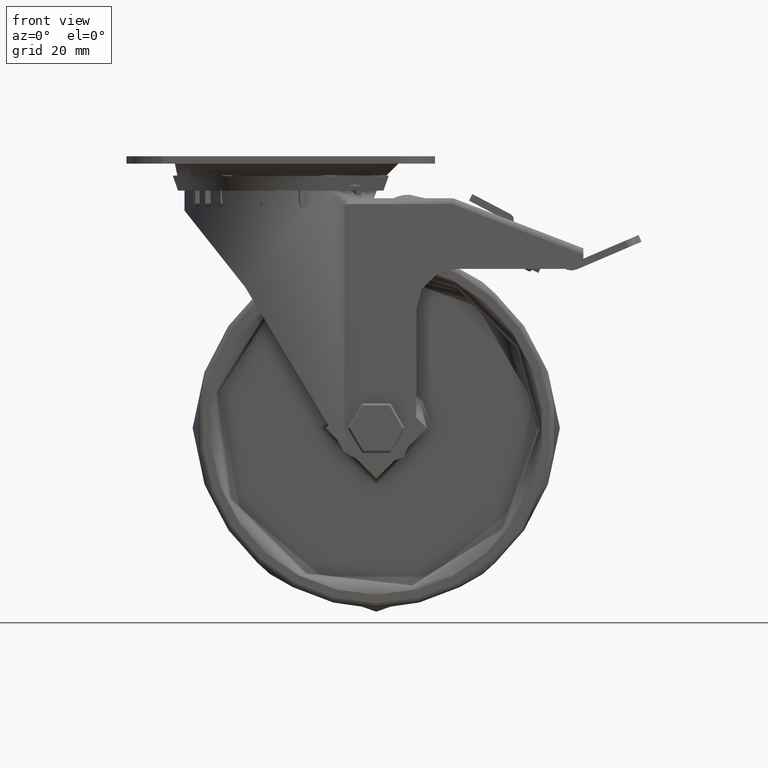
[diagram: clean part render]
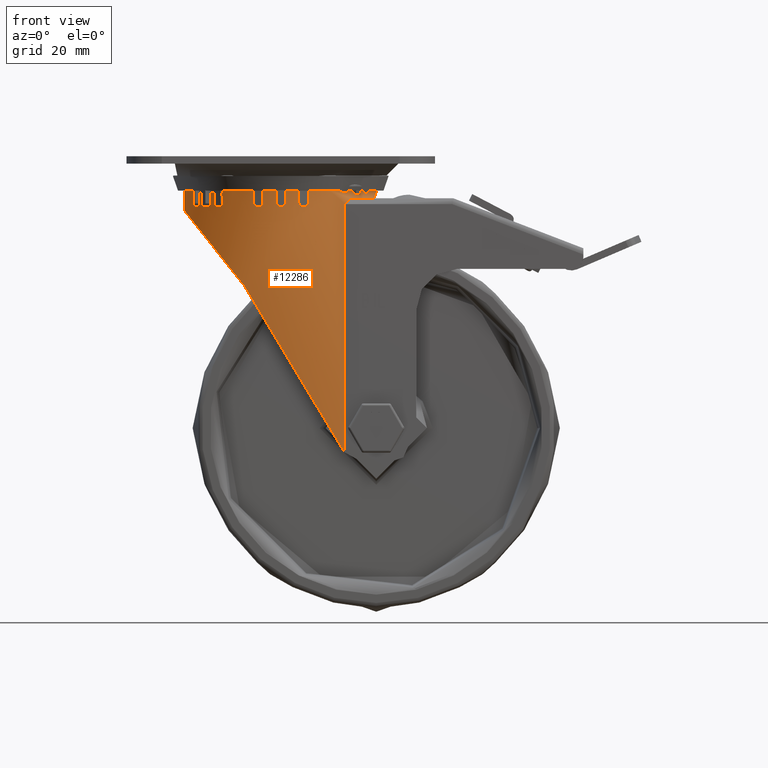
[diagram: same view with one face highlighted and labeled with its STEP entity id]
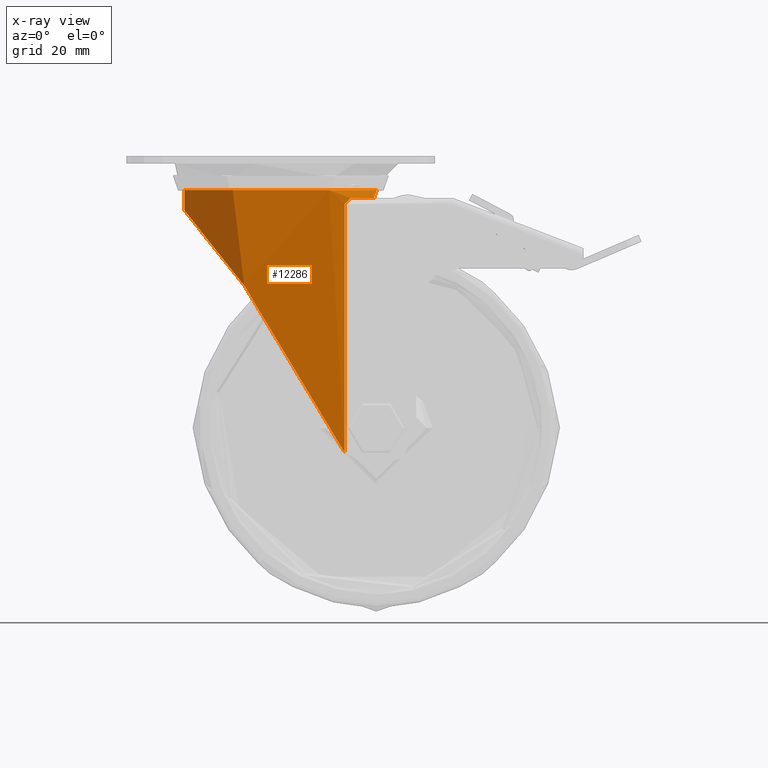
[diagram: x-ray of the same camera — body ghosted, the highlighted face saturated]
A machine part, front view. The second image highlights one B-rep face of the part: STEP entity #12286.
The next image is the same camera in x-ray: the body ghosted, the highlighted face saturated — about 0% of this face is hidden behind the body in this view.
In plain terms, the highlighted cylindrical surface (bore or boss wall) has radius 32.75 mm, axis along (-0, 0, -1).
Its self-contained STEP definition (entity closure, byte-faithful):
#251=B_SPLINE_CURVE_WITH_KNOTS('',3,(#18707,#18708,#18709,#18710,#18711,
#18712,#18713,#18714,#18715,#18716,#18717,#18718),.UNSPECIFIED.,.F.,.F.,
(4,2,2,2,2,4),(0.353333171617378,0.462768807225832,0.572204442834287,0.647454807621213,
0.685079990014675,0.722705172408138),.UNSPECIFIED.);
#252=B_SPLINE_CURVE_WITH_KNOTS('',3,(#18731,#18732,#18733,#18734,#18735,
#18736,#18737,#18738,#18739,#18740,#18741,#18742),.UNSPECIFIED.,.F.,.F.,
(4,2,2,2,2,4),(-1.0921904891071,-0.982754853498642,-0.873319217890188,-0.798068853103262,
-0.760443670709799,-0.722818488316336),.UNSPECIFIED.);
#258=B_SPLINE_CURVE_WITH_KNOTS('',3,(#18988,#18989,#18990,#18991,#18992,
#18993,#18994,#18995,#18996,#18997,#18998,#18999,#19000,#19001,#19002,#19003,
#19004,#19005,#19006,#19007,#19008,#19009,#19010,#19011,#19012,#19013),
 .UNSPECIFIED.,.F.,.F.,(4,2,2,2,2,2,2,2,2,2,2,2,4),(12.3522109473232,12.8264624563781,
13.3007139654331,13.7749654744881,14.249216983543,15.0296697163227,15.8101224491023,
16.5905751818819,17.3710279146615,19.2043764096577,21.0377249046539,22.8710733996502,
23.3792977751861),.UNSPECIFIED.);
#259=B_SPLINE_CURVE_WITH_KNOTS('',3,(#19018,#19019,#19020,#19021,#19022,
#19023,#19024,#19025,#19026,#19027,#19028,#19029,#19030,#19031,#19032,#19033,
#19034,#19035,#19036,#19037,#19038,#19039,#19040,#19041,#19042,#19043),
 .UNSPECIFIED.,.F.,.F.,(4,2,2,2,2,2,2,2,2,2,2,2,4),(1.32512411946027,1.83334849499621,
3.66669698999243,5.50004548498864,7.33339397998486,8.11384671276448,8.8942994455441,
9.67475217832372,10.4552049111033,10.9294564201583,11.4037079292133,11.8779594382682,
12.3522109473232),.UNSPECIFIED.);
#1195=FACE_OUTER_BOUND('',#1905,.T.);
#1905=EDGE_LOOP('',(#9339,#9340,#9341,#9342,#9343,#9344,#9345,#9346,#9347,
#9348));
#2872=LINE('',#19015,#4025);
#2873=LINE('',#19044,#4026);
#2874=LINE('',#19046,#4027);
#4025=VECTOR('',#15310,32.75);
#4026=VECTOR('',#15313,1000.);
#4027=VECTOR('',#15316,1000.);
#4908=CIRCLE('',#13345,32.75);
#4909=CIRCLE('',#13346,32.75);
#5556=VERTEX_POINT('',#18705);
#5557=VERTEX_POINT('',#18706);
#5562=VERTEX_POINT('',#18728);
#5563=VERTEX_POINT('',#18730);
#5608=VERTEX_POINT('',#18986);
#5609=VERTEX_POINT('',#18987);
#5610=VERTEX_POINT('',#19014);
#5611=VERTEX_POINT('',#19017);
#6909=EDGE_CURVE('',#5556,#5557,#251,.F.);
#6915=EDGE_CURVE('',#5562,#5563,#252,.T.);
#6973=EDGE_CURVE('',#5608,#5609,#258,.F.);
#6974=EDGE_CURVE('',#5609,#5610,#2872,.T.);
#6975=EDGE_CURVE('',#5610,#5610,#4908,.T.);
#6976=EDGE_CURVE('',#5609,#5611,#259,.F.);
#6977=EDGE_CURVE('',#5611,#5563,#2873,.T.);
#6978=EDGE_CURVE('',#5562,#5557,#4909,.T.);
#6979=EDGE_CURVE('',#5556,#5608,#2874,.T.);
#9339=ORIENTED_EDGE('',*,*,#6973,.T.);
#9340=ORIENTED_EDGE('',*,*,#6974,.T.);
#9341=ORIENTED_EDGE('',*,*,#6975,.F.);
#9342=ORIENTED_EDGE('',*,*,#6974,.F.);
#9343=ORIENTED_EDGE('',*,*,#6976,.T.);
#9344=ORIENTED_EDGE('',*,*,#6977,.T.);
#9345=ORIENTED_EDGE('',*,*,#6915,.F.);
#9346=ORIENTED_EDGE('',*,*,#6978,.T.);
#9347=ORIENTED_EDGE('',*,*,#6909,.F.);
#9348=ORIENTED_EDGE('',*,*,#6979,.T.);
#11942=CYLINDRICAL_SURFACE('',#13344,32.75);
#12286=ADVANCED_FACE('',(#1195),#11942,.T.);
#13344=AXIS2_PLACEMENT_3D('',#18985,#15308,#15309);
#13345=AXIS2_PLACEMENT_3D('',#19016,#15311,#15312);
#13346=AXIS2_PLACEMENT_3D('',#19045,#15314,#15315);
#15308=DIRECTION('center_axis',(-2.54426109809932E-15,1.10141173077893E-16,
-1.));
#15309=DIRECTION('ref_axis',(1.,0.,-2.54426109809932E-15));
#15310=DIRECTION('',(2.54426109809932E-15,-1.10141173077893E-16,1.));
#15311=DIRECTION('center_axis',(2.54426109809932E-15,-1.10141173077893E-16,
1.));
#15312=DIRECTION('ref_axis',(1.,-8.62658551769192E-33,-2.54426109809932E-15));
#15313=DIRECTION('',(2.54426109809932E-15,-1.10141173077893E-16,1.));
#15314=DIRECTION('center_axis',(2.54426109809932E-15,-1.10141173077893E-16,
1.));
#15315=DIRECTION('ref_axis',(1.,0.,-2.54426109809932E-15));
#15316=DIRECTION('',(-2.54426109809932E-15,1.10141173077893E-16,-1.));
#18705=CARTESIAN_POINT('',(21.7327517815853,24.5,-13.8));
#18706=CARTESIAN_POINT('',(23.7973212778245,22.5,-11.8));
#18707=CARTESIAN_POINT('Ctrl Pts',(23.7973212778245,22.5,-11.8));
#18708=CARTESIAN_POINT('Ctrl Pts',(23.5467053184158,22.7650661557066,-11.8));
#18709=CARTESIAN_POINT('Ctrl Pts',(23.2709509090605,23.0470127252032,-11.8549906010665));
#18710=CARTESIAN_POINT('Ctrl Pts',(22.7393808793837,23.5716462936627,-12.0871489613765));
#18711=CARTESIAN_POINT('Ctrl Pts',(22.4835305176054,23.8146141908869,-12.2636017603915));
#18712=CARTESIAN_POINT('Ctrl Pts',(22.1281732172298,24.1442633980958,-12.6431285384705));
#18713=CARTESIAN_POINT('Ctrl Pts',(21.9875740268116,24.2719355438624,-12.8411453709549));
#18714=CARTESIAN_POINT('Ctrl Pts',(21.8388520823176,24.4055625054119,-13.1806285564795));
#18715=CARTESIAN_POINT('Ctrl Pts',(21.7993445203071,24.4407914345765,-13.3008340033263));
#18716=CARTESIAN_POINT('Ctrl Pts',(21.7462933137529,24.4880081413799,-13.5478112510013));
#18717=CARTESIAN_POINT('Ctrl Pts',(21.7327517815853,24.5,-13.6745827253551));
#18718=CARTESIAN_POINT('Ctrl Pts',(21.7327517815853,24.5,-13.8));
#18728=CARTESIAN_POINT('',(23.7973212778245,-22.5,-11.8));
#18730=CARTESIAN_POINT('',(21.7327517815853,-24.5,-13.8));
#18731=CARTESIAN_POINT('Ctrl Pts',(23.7973212778245,-22.5,-11.8));
#18732=CARTESIAN_POINT('Ctrl Pts',(23.5467053184158,-22.7650661557066,-11.8));
#18733=CARTESIAN_POINT('Ctrl Pts',(23.2709509090605,-23.0470127252032,-11.8549906010665));
#18734=CARTESIAN_POINT('Ctrl Pts',(22.7393808793837,-23.5716462936627,-12.0871489613765));
#18735=CARTESIAN_POINT('Ctrl Pts',(22.4835305176054,-23.8146141908869,-12.2636017603915));
#18736=CARTESIAN_POINT('Ctrl Pts',(22.1281732172298,-24.1442633980958,-12.6431285384705));
#18737=CARTESIAN_POINT('Ctrl Pts',(21.9875740268116,-24.2719355438624,-12.8411453709549));
#18738=CARTESIAN_POINT('Ctrl Pts',(21.8388520823176,-24.4055625054119,-13.1806285564795));
#18739=CARTESIAN_POINT('Ctrl Pts',(21.7993445203071,-24.4407914345765,-13.3008340033263));
#18740=CARTESIAN_POINT('Ctrl Pts',(21.7462933137529,-24.4880081413799,-13.5478112510013));
#18741=CARTESIAN_POINT('Ctrl Pts',(21.7327517815853,-24.5,-13.6745827253551));
#18742=CARTESIAN_POINT('Ctrl Pts',(21.7327517815853,-24.5,-13.8));
#18985=CARTESIAN_POINT('Origin',(-3.4910426483396E-15,-3.46944695195361E-15,
-9.00000000000006));
#18986=CARTESIAN_POINT('',(21.7327517815851,24.5,-98.308210746186));
#18987=CARTESIAN_POINT('',(-32.75,-8.22565443360165E-15,-15.9999999999998));
#18988=CARTESIAN_POINT('Ctrl Pts',(-32.75,-1.77635683940025E-14,-15.9999999999998));
#18989=CARTESIAN_POINT('Ctrl Pts',(-32.75,1.58083836351652,-15.9999999999998));
#18990=CARTESIAN_POINT('Ctrl Pts',(-32.6332951842289,3.20437182435996,-16.1340403646035));
#18991=CARTESIAN_POINT('Ctrl Pts',(-32.1561764708553,6.41718536016323,-16.6844552350327));
#18992=CARTESIAN_POINT('Ctrl Pts',(-31.7959765182616,8.00652576401799,-17.1006630163924));
#18993=CARTESIAN_POINT('Ctrl Pts',(-30.8712739469946,11.0477577209459,-18.1767241383706));
#18994=CARTESIAN_POINT('Ctrl Pts',(-30.3062648306492,12.5026807575127,-18.8373412246844));
#18995=CARTESIAN_POINT('Ctrl Pts',(-29.0444848191669,15.2054140164855,-20.3258803536237));
#18996=CARTESIAN_POINT('Ctrl Pts',(-28.3480447999867,16.4534910681922,-21.1535983496583));
#18997=CARTESIAN_POINT('Ctrl Pts',(-26.4610311492383,19.4206164801289,-23.4179694885873));
#18998=CARTESIAN_POINT('Ctrl Pts',(-25.1304604273388,21.1024432435082,-25.0357745941895));
#18999=CARTESIAN_POINT('Ctrl Pts',(-22.2714386340763,24.1005430004494,-28.5833426773388));
#19000=CARTESIAN_POINT('Ctrl Pts',(-20.7431618672085,25.4168176887175,-30.5132446929568));
#19001=CARTESIAN_POINT('Ctrl Pts',(-17.6116642946697,27.6789195233465,-34.5561683460084));
#19002=CARTESIAN_POINT('Ctrl Pts',(-16.0078150526883,28.6254660558853,-36.6702223595954));
#19003=CARTESIAN_POINT('Ctrl Pts',(-12.8439532459968,30.1778116252014,-40.9353197785594));
#19004=CARTESIAN_POINT('Ctrl Pts',(-11.284007948724,30.7838533160169,-43.086324761774));
#19005=CARTESIAN_POINT('Ctrl Pts',(-6.32115426841053,32.3406117779956,-50.0761186212519));
#19006=CARTESIAN_POINT('Ctrl Pts',(-2.79040641782552,32.8124591063924,-55.301744145008));
#19007=CARTESIAN_POINT('Ctrl Pts',(4.10207529172664,32.6744061779167,-66.1050040971101));
#19008=CARTESIAN_POINT('Ctrl Pts',(7.46364833797777,32.0643258977374,-71.6827388219298));
#19009=CARTESIAN_POINT('Ctrl Pts',(13.8124764799517,29.8838501272062,-82.85561634856));
#19010=CARTESIAN_POINT('Ctrl Pts',(16.7967246261159,28.3191777213789,-88.4449398623327));
#19011=CARTESIAN_POINT('Ctrl Pts',(20.2806458788663,25.7321778278429,-95.3553667156965));
#19012=CARTESIAN_POINT('Ctrl Pts',(21.0171191497096,25.1348027083817,-96.8410765082962));
#19013=CARTESIAN_POINT('Ctrl Pts',(21.7327517815852,24.4999999999999,-98.3082107461859));
#19014=CARTESIAN_POINT('',(-32.75,-7.48016521916119E-15,-8.99999999999998));
#19015=CARTESIAN_POINT('',(-32.75,5.41271315253972E-16,-8.99999999999998));
#19016=CARTESIAN_POINT('Origin',(-3.4910426483396E-15,-3.46944695195361E-15,
-9.00000000000006));
#19017=CARTESIAN_POINT('',(21.7327517815851,-24.5,-98.308210746186));
#19018=CARTESIAN_POINT('Ctrl Pts',(21.7327517815852,-24.4999999999999,-98.308210746186));
#19019=CARTESIAN_POINT('Ctrl Pts',(21.0171191497096,-25.1348027083817,-96.8410765082962));
#19020=CARTESIAN_POINT('Ctrl Pts',(20.2806458788663,-25.7321778278429,-95.3553667156965));
#19021=CARTESIAN_POINT('Ctrl Pts',(16.7967246261159,-28.3191777213789,-88.4449398623327));
#19022=CARTESIAN_POINT('Ctrl Pts',(13.8124764799517,-29.8838501272062,-82.85561634856));
#19023=CARTESIAN_POINT('Ctrl Pts',(7.46364833797778,-32.0643258977373,-71.6827388219298));
#19024=CARTESIAN_POINT('Ctrl Pts',(4.10207529172664,-32.6744061779167,-66.1050040971102));
#19025=CARTESIAN_POINT('Ctrl Pts',(-2.79040641782552,-32.8124591063924,
-55.3017441450081));
#19026=CARTESIAN_POINT('Ctrl Pts',(-6.32115426841052,-32.3406117779956,
-50.0761186212519));
#19027=CARTESIAN_POINT('Ctrl Pts',(-11.284007948724,-30.7838533160169,-43.0863247617741));
#19028=CARTESIAN_POINT('Ctrl Pts',(-12.8439532459968,-30.1778116252014,
-40.9353197785594));
#19029=CARTESIAN_POINT('Ctrl Pts',(-16.0078150526883,-28.6254660558853,
-36.6702223595954));
#19030=CARTESIAN_POINT('Ctrl Pts',(-17.6116642946697,-27.6789195233465,
-34.5561683460084));
#19031=CARTESIAN_POINT('Ctrl Pts',(-20.7431618672085,-25.4168176887175,
-30.5132446929568));
#19032=CARTESIAN_POINT('Ctrl Pts',(-22.2714386340763,-24.1005430004495,
-28.5833426773388));
#19033=CARTESIAN_POINT('Ctrl Pts',(-25.1304604273388,-21.1024432435082,
-25.0357745941895));
#19034=CARTESIAN_POINT('Ctrl Pts',(-26.4610311492383,-19.4206164801289,
-23.4179694885873));
#19035=CARTESIAN_POINT('Ctrl Pts',(-28.3480447999867,-16.4534910681923,
-21.1535983496583));
#19036=CARTESIAN_POINT('Ctrl Pts',(-29.0444848191669,-15.2054140164855,
-20.3258803536237));
#19037=CARTESIAN_POINT('Ctrl Pts',(-30.3062648306492,-12.5026807575127,
-18.8373412246844));
#19038=CARTESIAN_POINT('Ctrl Pts',(-30.8712739469946,-11.0477577209459,
-18.1767241383706));
#19039=CARTESIAN_POINT('Ctrl Pts',(-31.7959765182616,-8.00652576401801,
-17.1006630163924));
#19040=CARTESIAN_POINT('Ctrl Pts',(-32.1561764708553,-6.41718536016326,
-16.6844552350327));
#19041=CARTESIAN_POINT('Ctrl Pts',(-32.6332951842289,-3.20437182436,-16.1340403646035));
#19042=CARTESIAN_POINT('Ctrl Pts',(-32.75,-1.58083836351655,-15.9999999999998));
#19043=CARTESIAN_POINT('Ctrl Pts',(-32.75,-1.58206781009085E-14,-15.9999999999998));
#19044=CARTESIAN_POINT('',(21.7327517815852,-24.5,-58.3));
#19045=CARTESIAN_POINT('Origin',(-1.06149737230173E-14,-3.16105166733553E-15,
-11.7999999999999));
#19046=CARTESIAN_POINT('',(21.7327517815852,24.5,-58.3));